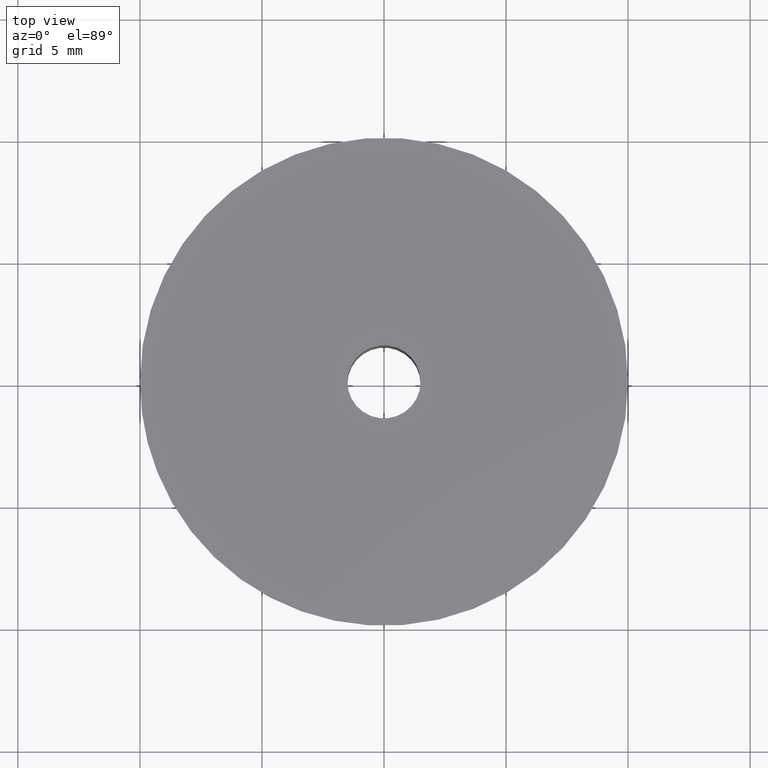
[diagram: clean part render]
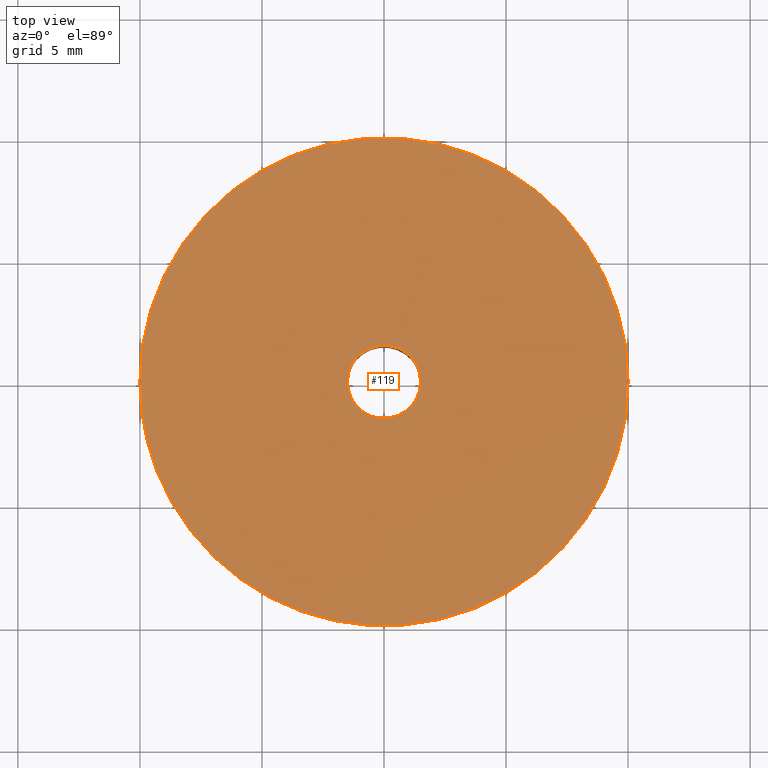
[diagram: same view with one face highlighted and labeled with its STEP entity id]
A machine part, top view. The second image highlights one B-rep face of the part: STEP entity #119.
In plain terms, the highlighted planar face has unit normal (0, 0, -1).
Its self-contained STEP definition (entity closure, byte-faithful):
#119=ADVANCED_FACE('',(#206,#207),#205,.F.);
#205=PLANE('',#379);
#206=FACE_OUTER_BOUND('',#380,.T.);
#207=FACE_BOUND('',#381,.T.);
#376=CARTESIAN_POINT('',(1.20000000000E+001,-1.26037039870E+001,1.00000000000E+001));
#377=DIRECTION('',(0.00000000000E+000,0.00000000000E+000,-1.00000000000E+000));
#378=DIRECTION('',(-1.00000000000E+000,0.00000000000E+000,0.00000000000E+000));
#379=AXIS2_PLACEMENT_3D('',#376,#377,#378);
#380=EDGE_LOOP('',(#526,#527,#528,#529));
#381=EDGE_LOOP('',(#530,#531));
#526=ORIENTED_EDGE('',*,*,#598,.F.);
#527=ORIENTED_EDGE('',*,*,#599,.F.);
#528=ORIENTED_EDGE('',*,*,#600,.F.);
#529=ORIENTED_EDGE('',*,*,#601,.F.);
#530=ORIENTED_EDGE('',*,*,#602,.T.);
#531=ORIENTED_EDGE('',*,*,#603,.T.);
#598=EDGE_CURVE('',#732,#733,#734,.T.);
#599=EDGE_CURVE('',#740,#732,#741,.T.);
#600=EDGE_CURVE('',#747,#740,#748,.T.);
#601=EDGE_CURVE('',#733,#747,#754,.T.);
#602=EDGE_CURVE('',#760,#761,#762,.T.);
#603=EDGE_CURVE('',#761,#760,#768,.T.);
#732=VERTEX_POINT('',#972);
#733=VERTEX_POINT('',#973);
#734=CIRCLE('',#977,9.99999934046E+000);
#740=VERTEX_POINT('',#978);
#741=CIRCLE('',#982,9.99999886638E+000);
#747=VERTEX_POINT('',#983);
#748=CIRCLE('',#987,9.99999947839E+000);
#754=CIRCLE('',#991,1.00000000000E+001);
#760=VERTEX_POINT('',#992);
#761=VERTEX_POINT('',#993);
#762=CIRCLE('',#997,1.50000000000E+000);
#768=CIRCLE('',#1001,1.50000000000E+000);
#972=CARTESIAN_POINT('',(-9.29864549736E+000,-3.67902051019E+000,1.00000000000E+001));
#973=CARTESIAN_POINT('',(-1.00000000000E+001,0.00000000000E+000,1.00000000000E+001));
#974=CARTESIAN_POINT('',(-6.59538267556E-007,1.65754410641E-006,9.99999835983E+000));
#975=DIRECTION('',(-1.64017564343E-007,8.60369409487E-007,-1.00000000000E+000));
#976=DIRECTION('',(9.29864484105E-001,3.67902216901E-001,1.64017705252E-007));
#977=AXIS2_PLACEMENT_3D('',#974,#975,#976);
#978=CARTESIAN_POINT('',(7.84585224528E-001,-9.96917378851E+000,1.00000000000E+001));
#979=CARTESIAN_POINT('',(-2.92627363230E-007,-5.58436791920E-007,9.99999686016E+000));
#980=DIRECTION('',(2.00623612506E-008,-1.25153703173E-008,-1.00000000000E+000));
#981=DIRECTION('',(-7.84585559033E-002,9.96917376218E-001,-1.40508540308E-008));
#982=AXIS2_PLACEMENT_3D('',#979,#980,#981);
#983=CARTESIAN_POINT('',(1.00000000000E+001,0.00000000000E+000,1.00000000000E+001));
#984=CARTESIAN_POINT('',(5.21611849713E-007,1.19550088051E-007,9.99999850033E+000));
#985=DIRECTION('',(1.49966706068E-007,1.62232974471E-007,-1.00000000000E+000));
#986=DIRECTION('',(-1.00000000000E+000,1.19550094286E-008,-1.49966704128E-007));
#987=AXIS2_PLACEMENT_3D('',#984,#985,#986);
#988=CARTESIAN_POINT('',(0.00000000000E+000,0.00000000000E+000,1.00000000000E+001));
#989=DIRECTION('',(0.00000000000E+000,2.51214793389E-016,-1.00000000000E+000));
#990=DIRECTION('',(1.00000000000E+000,-0.00000000000E+000,-0.00000000000E+000));
#991=AXIS2_PLACEMENT_3D('',#988,#989,#990);
#992=CARTESIAN_POINT('',(1.77050807279E-001,-1.48951435429E+000,1.00000000000E+001));
#993=CARTESIAN_POINT('',(-1.77051351985E-001,1.48951428955E+000,1.00000000000E+001));
#994=CARTESIAN_POINT('',(1.22124532709E-015,6.66133814775E-016,1.00000000000E+001));
#995=DIRECTION('',(-2.84217094304E-014,-3.36055386708E-015,-1.00000000000E+000));
#996=DIRECTION('',(1.18033871519E-001,-9.93009569528E-001,-1.76622503478E-017));
#997=AXIS2_PLACEMENT_3D('',#994,#995,#996);
#998=CARTESIAN_POINT('',(1.22124532709E-015,6.66133814775E-016,1.00000000000E+001));
#999=DIRECTION('',(-2.84217094304E-014,-3.36055386708E-015,-1.00000000000E+000));
#1000=DIRECTION('',(1.18033871519E-001,-9.93009569528E-001,-1.76622503478E-017));
#1001=AXIS2_PLACEMENT_3D('',#998,#999,#1000);